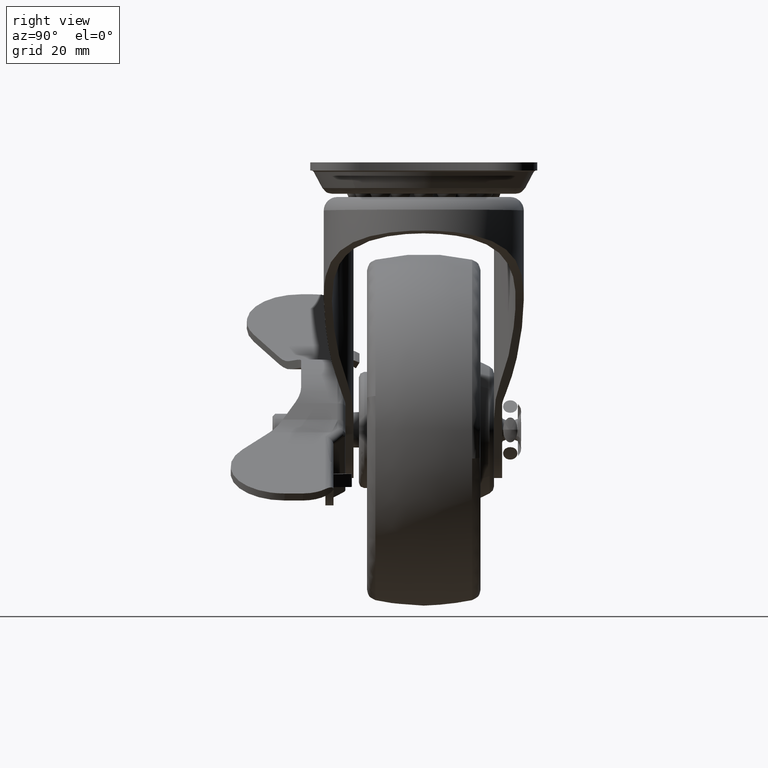
[diagram: clean part render]
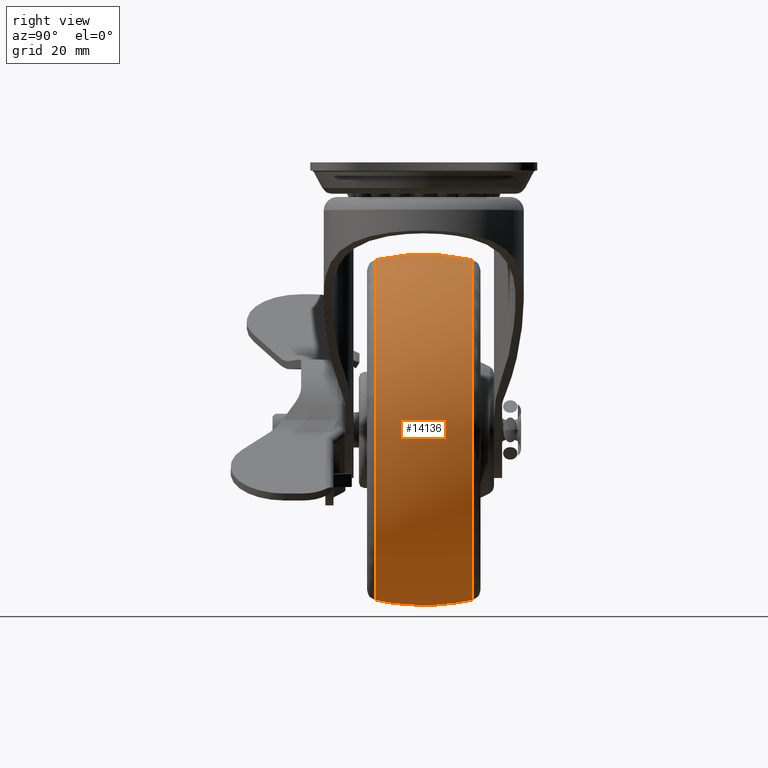
[diagram: same view with one face highlighted and labeled with its STEP entity id]
A machine part, right view. The second image highlights one B-rep face of the part: STEP entity #14136.
In plain terms, the highlighted face is a freeform B-spline surface patch.
Its self-contained STEP definition (entity closure, byte-faithful):
#12885=CARTESIAN_POINT('',(-24.0,8.947336257173930,-16.513521757001790));
#12886=VERTEX_POINT('',#12885);
#12902=CARTESIAN_POINT('',(7.038053842290333,8.947354693358054,-53.294983683540977));
#12903=VERTEX_POINT('',#12902);
#12904=CARTESIAN_POINT('',(7.038053842290333,8.947354693358054,-53.294983683540977));
#12905=CARTESIAN_POINT('',(7.350090336757843,8.947353768360655,-51.466914289849043));
#12906=CARTESIAN_POINT('',(7.643953845996498,8.947351928043842,-47.826865162570989));
#12907=CARTESIAN_POINT('',(7.200134397448603,8.947349517523794,-43.051285896039637));
#12908=CARTESIAN_POINT('',(6.230993879905615,8.947347449964335,-38.949693324031841));
#12909=CARTESIAN_POINT('',(4.770957662269700,8.947345420158623,-34.918271748401672));
#12910=CARTESIAN_POINT('',(2.654025049601716,8.947343458668968,-31.015974706319820));
#12911=CARTESIAN_POINT('',(-0.144289324352766,8.947341598829564,-27.308558366741501));
#12912=CARTESIAN_POINT('',(-2.907652726364344,8.947340197977756,-24.510000058953249));
#12913=CARTESIAN_POINT('',(-6.165354744679130,8.947338920055236,-21.950179703327080));
#12914=CARTESIAN_POINT('',(-9.967369192989938,8.947337785755286,-19.669594462062410));
#12915=CARTESIAN_POINT('',(-14.480671714024970,8.947336885679633,-17.846032142473859));
#12916=CARTESIAN_POINT('',(-19.292451305698371,8.947336353856056,-16.748626830148460));
#12917=CARTESIAN_POINT('',(-22.430811279385019,8.947336249765234,-16.513433348494310));
#12918=CARTESIAN_POINT('',(-24.0,8.947336257173930,-16.513521757001790));
#12919=B_SPLINE_CURVE_WITH_KNOTS('',3,(#12904,#12905,#12906,#12907,#12908,#12909,#12910,#12911,#12912,#12913,#12914,#12915,#12916,#12917,#12918),.UNSPECIFIED.,.F.,.U.,(4,1,1,1,1,1,1,1,1,1,1,1,4),(0.000000063023919,5.563507503283589,10.913045226823900,14.336747456656919,18.188429290741471,23.751953183342469,27.603554242508270,32.097167895062647,35.520879041928453,40.014499029920728,45.364032831625437,50.071643195338467,54.779207371505123),.UNSPECIFIED.);
#12920=EDGE_CURVE('',#12903,#12886,#12919,.T.);
#12983=CARTESIAN_POINT('',(-24.0,8.947368421051781,-79.486462861437403));
#12984=VERTEX_POINT('',#12983);
#12985=CARTESIAN_POINT('',(-24.0,8.947368421051781,-79.486462861437403));
#12986=CARTESIAN_POINT('',(-22.678148629432311,8.947368412350166,-79.486481910070481));
#12987=CARTESIAN_POINT('',(-19.402214582926518,8.947368284156914,-79.280012999772978));
#12988=CARTESIAN_POINT('',(-14.951176217583960,8.947367743296162,-78.289293135275258));
#12989=CARTESIAN_POINT('',(-11.036189927214620,8.947366927827940,-76.759874161122880));
#12990=CARTESIAN_POINT('',(-8.023909675321233,8.947366099982851,-75.194961706044310));
#12991=CARTESIAN_POINT('',(-4.895327107070064,8.947365020070949,-73.143333206525625));
#12992=CARTESIAN_POINT('',(-1.883978874086483,8.947363658778082,-70.545232933797507));
#12993=CARTESIAN_POINT('',(0.558493251103808,8.947362218506598,-67.786906076537520));
#12994=CARTESIAN_POINT('',(2.783565187466294,8.947360615660699,-64.710932547936110));
#12995=CARTESIAN_POINT('',(4.507026546390701,8.947358986953995,-61.578468820569100));
#12996=CARTESIAN_POINT('',(6.105749621963841,8.947356875057560,-57.508575849853649));
#12997=CARTESIAN_POINT('',(6.757882907756575,8.947355543505026,-54.937963927080681));
#12998=CARTESIAN_POINT('',(7.038053842290333,8.947354693358054,-53.294983683540977));
#12999=B_SPLINE_CURVE_WITH_KNOTS('',3,(#12985,#12986,#12987,#12988,#12989,#12990,#12991,#12992,#12993,#12994,#12995,#12996,#12997,#12998),.UNSPECIFIED.,.F.,.U.,(4,1,1,1,1,1,1,1,1,1,1,4),(0.000000054904028,3.965569494202207,9.827736435170536,13.620903514959171,16.551984789235750,20.000321804953401,24.827933788479921,28.448706059261749,31.034956810894830,36.207460560286677,39.138540517001097,44.138614304316377),.UNSPECIFIED.);
#13000=EDGE_CURVE('',#12984,#12903,#12999,.T.);
#13002=CARTESIAN_POINT('',(-55.275880306832093,8.947359974596118,-44.364472857753377));
#13003=VERTEX_POINT('',#13002);
#13004=CARTESIAN_POINT('',(-55.275880306832093,8.947359974596118,-44.364472857753377));
#13005=CARTESIAN_POINT('',(-55.547821594770419,8.947360255325600,-46.699625475546533));
#13006=CARTESIAN_POINT('',(-55.560013248741228,8.947360720479141,-50.178457113873712));
#13007=CARTESIAN_POINT('',(-54.871795696837680,8.947361371031791,-54.415827660036193));
#13008=CARTESIAN_POINT('',(-54.091745359712363,8.947361868548033,-57.430454397843143));
#13009=CARTESIAN_POINT('',(-52.837680219624303,8.947362481010702,-60.879961492696879));
#13010=CARTESIAN_POINT('',(-50.934209604537351,8.947363194257591,-64.502579464297625));
#13011=CARTESIAN_POINT('',(-48.552568460985228,8.947363924153788,-67.823520136599001));
#13012=CARTESIAN_POINT('',(-46.084699858895412,8.947364583321095,-70.540352492349328));
#13013=CARTESIAN_POINT('',(-43.424470511335080,8.947365212799516,-72.864541432424801));
#13014=CARTESIAN_POINT('',(-40.123903728049271,8.947365913876961,-75.152327520097472));
#13015=CARTESIAN_POINT('',(-36.545151089147218,8.947366587775868,-76.989756710488393));
#13016=CARTESIAN_POINT('',(-32.425381950503670,8.947367272811215,-78.428445430118174));
#13017=CARTESIAN_POINT('',(-28.356043142575910,8.947367873776360,-79.285247274833679));
#13018=CARTESIAN_POINT('',(-25.452020259805622,8.947368247629470,-79.486520354623366));
#13019=CARTESIAN_POINT('',(-24.0,8.947368421051781,-79.486462861437403));
#13020=B_SPLINE_CURVE_WITH_KNOTS('',3,(#13004,#13005,#13006,#13007,#13008,#13009,#13010,#13011,#13012,#13013,#13014,#13015,#13016,#13017,#13018,#13019),.UNSPECIFIED.,.F.,.U.,(4,1,1,1,1,1,1,1,1,1,1,1,1,4),(0.000000062004275,7.052658285308425,10.371596052613160,12.860778893211149,16.387136963650011,21.365503504150169,25.099311634838450,28.625605716799480,32.359363234047777,35.678273925599711,40.656662066344467,44.390453174510597,48.746510877432158,53.102573520156177),.UNSPECIFIED.);
#13021=EDGE_CURVE('',#13003,#12984,#13020,.T.);
#13070=CARTESIAN_POINT('',(-14.191573362002011,-8.947368095127844,-77.919761409910095));
#13071=VERTEX_POINT('',#13070);
#13072=CARTESIAN_POINT('',(6.852174713301443,-8.947360323541604,-41.711834097038121));
#13073=VERTEX_POINT('',#13072);
#13074=CARTESIAN_POINT('',(-14.191573362002011,-8.947368095127844,-77.919761409910095));
#13075=CARTESIAN_POINT('',(-11.980595829939730,-8.947367925976502,-77.195444393366216));
#13076=CARTESIAN_POINT('',(-8.976992091229809,-8.947367615117829,-75.825784964998192));
#13077=CARTESIAN_POINT('',(-5.041080099159434,-8.947367038322424,-73.224841107047169));
#13078=CARTESIAN_POINT('',(-2.245728491778010,-8.947366524460257,-70.881816398065595));
#13079=CARTESIAN_POINT('',(0.469776553940039,-8.947365885203176,-67.939319639837450));
#13080=CARTESIAN_POINT('',(2.562559545496752,-8.947365257044268,-65.026973720342014));
#13081=CARTESIAN_POINT('',(4.436144596944491,-8.947364542413524,-61.695261724988853));
#13082=CARTESIAN_POINT('',(5.901604023561802,-8.947363787982281,-58.159355551440157));
#13083=CARTESIAN_POINT('',(7.112624415606220,-8.947362819381720,-53.595281607299512));
#13084=CARTESIAN_POINT('',(7.695023120151242,-8.947361663029517,-48.115112970778412));
#13085=CARTESIAN_POINT('',(7.305250927123625,-8.947360786957523,-43.933018397606062));
#13086=CARTESIAN_POINT('',(6.852174713301443,-8.947360323541604,-41.711834097038121));
#13087=B_SPLINE_CURVE_WITH_KNOTS('',3,(#13074,#13075,#13076,#13077,#13078,#13079,#13080,#13081,#13082,#13083,#13084,#13085,#13086),.UNSPECIFIED.,.F.,.U.,(4,1,1,1,1,1,1,1,1,1,4),(0.000000055752359,6.979644766757836,9.843107743871784,14.138289170895479,17.896567191299269,21.833825872057901,24.876181014893529,29.350342797420780,33.287605455774852,39.014519061373903,45.815200377075392),.UNSPECIFIED.);
#13088=EDGE_CURVE('',#13071,#13073,#13087,.T.);
#13168=CARTESIAN_POINT('',(-24.0,-8.947368421051811,-79.486462861437403));
#13169=VERTEX_POINT('',#13168);
#13170=CARTESIAN_POINT('',(-24.0,-8.947368421051811,-79.486462861437403));
#13171=CARTESIAN_POINT('',(-22.597347654289379,-8.947368421059544,-79.486500061545627));
#13172=CARTESIAN_POINT('',(-19.272545538824371,-8.947368374764423,-79.263961523735205));
#13173=CARTESIAN_POINT('',(-16.018034967667340,-8.947368219734235,-78.518738550777528));
#13174=CARTESIAN_POINT('',(-14.191573362002011,-8.947368095127844,-77.919761409910095));
#13175=B_SPLINE_CURVE_WITH_KNOTS('',3,(#13170,#13171,#13172,#13173,#13174),.UNSPECIFIED.,.F.,.U.,(4,1,4),(2.694014E-009,4.207962567013001,9.974427663913261),.UNSPECIFIED.);
#13176=EDGE_CURVE('',#13169,#13071,#13175,.T.);
#13242=CARTESIAN_POINT('',(-24.0,-8.947354645992999,-16.513525977205941));
#13243=VERTEX_POINT('',#13242);
#13244=CARTESIAN_POINT('',(6.852174713301443,-8.947360323541604,-41.711834097038121));
#13245=CARTESIAN_POINT('',(6.616674356553986,-8.947360063186283,-40.556315317975717));
#13246=CARTESIAN_POINT('',(5.929853179129161,-8.947359474901806,-37.945369433325652));
#13247=CARTESIAN_POINT('',(4.489652205011048,-8.947358675623919,-34.397984065198933));
#13248=CARTESIAN_POINT('',(2.535554894108912,-8.947357891083261,-30.916006774067579));
#13249=CARTESIAN_POINT('',(-0.080119960030152,-8.947357081164174,-27.321394127463972));
#13250=CARTESIAN_POINT('',(-3.195783585420354,-8.947356381339059,-24.215402045432619));
#13251=CARTESIAN_POINT('',(-6.805626178187480,-8.947355776581373,-21.531346166256590));
#13252=CARTESIAN_POINT('',(-10.373765359109671,-8.947355317308249,-19.492982032799411));
#13253=CARTESIAN_POINT('',(-14.252155616385579,-8.947354973813972,-17.968473308258510));
#13254=CARTESIAN_POINT('',(-18.833708518464210,-8.947354714485568,-16.817511337658718));
#13255=CARTESIAN_POINT('',(-21.978347971737819,-8.947354645935379,-16.513271893004180));
#13256=CARTESIAN_POINT('',(-24.0,-8.947354645992999,-16.513525977205941));
#13257=B_SPLINE_CURVE_WITH_KNOTS('',3,(#13244,#13245,#13246,#13247,#13248,#13249,#13250,#13251,#13252,#13253,#13254,#13255,#13256),.UNSPECIFIED.,.F.,.U.,(4,1,1,1,1,1,1,1,1,1,4),(0.000000052446886,3.537828425477862,8.086516996105267,11.455915967217621,15.499182803335691,21.395648451070059,24.596489220533840,28.976723801619951,33.693874365227302,37.063261435819747,43.128151239804183),.UNSPECIFIED.);
#13258=EDGE_CURVE('',#13073,#13243,#13257,.T.);
#13260=CARTESIAN_POINT('',(-55.275879273257722,-8.947364501282479,-44.364472963487678));
#13261=VERTEX_POINT('',#13260);
#13279=CARTESIAN_POINT('',(-55.275879273257722,-8.947364501282479,-44.364472963487678));
#13280=CARTESIAN_POINT('',(-55.451579249134461,-8.947364585594800,-45.875449321716772));
#13281=CARTESIAN_POINT('',(-55.589413955473937,-8.947364776268397,-49.061451438131407));
#13282=CARTESIAN_POINT('',(-55.117261149657608,-8.947365072838755,-53.405544566373173));
#13283=CARTESIAN_POINT('',(-54.016026259594440,-8.947365410002686,-57.841599793926648));
#13284=CARTESIAN_POINT('',(-52.491424461756992,-8.947365730967059,-61.640395785895052));
#13285=CARTESIAN_POINT('',(-50.357835400850398,-8.947366081159817,-65.366461035535920));
#13286=CARTESIAN_POINT('',(-48.200496207248449,-8.947366380382524,-68.252520865027378));
#13287=CARTESIAN_POINT('',(-45.347481026183551,-8.947366726432472,-71.271383167539341));
#13288=CARTESIAN_POINT('',(-42.223291419751867,-8.947367057457823,-73.807400577774203));
#13289=CARTESIAN_POINT('',(-38.896688631623562,-8.947367366021306,-75.802284344737998));
#13290=CARTESIAN_POINT('',(-35.637783351390709,-8.947367641687700,-77.328982776557993));
#13291=CARTESIAN_POINT('',(-32.026670373967377,-8.947367917866917,-78.550250050880976));
#13292=CARTESIAN_POINT('',(-27.941179840597371,-8.947368192633208,-79.326403452611927));
#13293=CARTESIAN_POINT('',(-25.244575170079990,-8.947368352067651,-79.486485125302238));
#13294=CARTESIAN_POINT('',(-24.0,-8.947368421051811,-79.486462861437403));
#13295=B_SPLINE_CURVE_WITH_KNOTS('',3,(#13279,#13280,#13281,#13282,#13283,#13284,#13285,#13286,#13287,#13288,#13289,#13290,#13291,#13292,#13293,#13294),.UNSPECIFIED.,.F.,.U.,(4,1,1,1,1,1,1,1,1,1,1,1,1,4),(0.000000062004503,4.563477460401472,9.541862017825160,13.068211911195480,18.254031924220079,21.780385927768570,25.929043810064769,29.040424272260989,34.226254486718453,37.960038994862323,40.656661553418623,45.012743651364843,49.368839118576197,53.102572850210649),.UNSPECIFIED.);
#13296=EDGE_CURVE('',#13261,#13169,#13295,.T.);
#14055=CARTESIAN_POINT('',(-55.058100660806424,-9.854040007855017,-44.389750488005582));
#14056=CARTESIAN_POINT('',(-56.282628353075125,-5.004131983858700,-44.247409343142706));
#14057=CARTESIAN_POINT('',(-56.282628353075133,7.439483E-015,-44.247409343142714));
#14058=CARTESIAN_POINT('',(-56.282628353075125,5.004131983858714,-44.247409343142706));
#14059=CARTESIAN_POINT('',(-55.058100660806424,9.854040007855032,-44.389750488005582));
#14060=CARTESIAN_POINT('',(-55.267227080661627,-9.854040007855019,-46.188816334668481));
#14061=CARTESIAN_POINT('',(-56.499999999999893,-5.004131983858700,-46.117406956480998));
#14062=CARTESIAN_POINT('',(-56.499999999999886,7.439483E-015,-46.117406956481005));
#14063=CARTESIAN_POINT('',(-56.499999999999893,5.004131983858714,-46.117406956480998));
#14064=CARTESIAN_POINT('',(-55.267227080661627,9.854040007855032,-46.188816334668481));
#14065=CARTESIAN_POINT('',(-55.267227080661627,-9.854040007855021,-47.999996000000003));
#14066=CARTESIAN_POINT('',(-56.499999999999893,-5.004131983858700,-47.999996000000003));
#14067=CARTESIAN_POINT('',(-56.499999999999893,7.439483E-015,-47.999996000000003));
#14068=CARTESIAN_POINT('',(-56.499999999999893,5.004131983858714,-47.999996000000003));
#14069=CARTESIAN_POINT('',(-55.267227080661627,9.854040007855033,-47.999996000000003));
#14070=CARTESIAN_POINT('',(-55.267227080661641,-9.854040007855019,-79.267223080661637));
#14071=CARTESIAN_POINT('',(-56.499999999999908,-5.004131983858700,-80.499995999999896));
#14072=CARTESIAN_POINT('',(-56.499999999999901,7.439483E-015,-80.499995999999896));
#14073=CARTESIAN_POINT('',(-56.499999999999908,5.004131983858714,-80.499995999999896));
#14074=CARTESIAN_POINT('',(-55.267227080661641,9.854040007855033,-79.267223080661637));
#14075=CARTESIAN_POINT('',(-23.999999999999996,-9.854040007855021,-79.267223080661651));
#14076=CARTESIAN_POINT('',(-23.999999999999996,-5.004131983858700,-80.499995999999896));
#14077=CARTESIAN_POINT('',(-24.0,7.439483E-015,-80.499995999999896));
#14078=CARTESIAN_POINT('',(-23.999999999999996,5.004131983858714,-80.499995999999896));
#14079=CARTESIAN_POINT('',(-23.999999999999996,9.854040007855033,-79.267223080661651));
#14080=CARTESIAN_POINT('',(7.267227080661626,-9.854040007855019,-79.267223080661637));
#14081=CARTESIAN_POINT('',(8.499999999999892,-5.004131983858700,-80.499995999999896));
#14082=CARTESIAN_POINT('',(8.499999999999892,7.439483E-015,-80.499995999999896));
#14083=CARTESIAN_POINT('',(8.499999999999892,5.004131983858714,-80.499995999999896));
#14084=CARTESIAN_POINT('',(7.267227080661626,9.854040007855033,-79.267223080661637));
#14085=CARTESIAN_POINT('',(7.267227080661623,-9.854040007855021,-47.999996000000003));
#14086=CARTESIAN_POINT('',(8.499999999999890,-5.004131983858700,-47.999996000000003));
#14087=CARTESIAN_POINT('',(8.499999999999890,7.439483E-015,-47.999996000000003));
#14088=CARTESIAN_POINT('',(8.499999999999890,5.004131983858714,-47.999996000000003));
#14089=CARTESIAN_POINT('',(7.267227080661624,9.854040007855033,-47.999996000000003));
#14090=CARTESIAN_POINT('',(7.267227080661626,-9.854040007855019,-16.732768919338373));
#14091=CARTESIAN_POINT('',(8.499999999999892,-5.004131983858700,-15.499996000000120));
#14092=CARTESIAN_POINT('',(8.499999999999892,7.439483E-015,-15.499996000000110));
#14093=CARTESIAN_POINT('',(8.499999999999892,5.004131983858714,-15.499996000000120));
#14094=CARTESIAN_POINT('',(7.267227080661626,9.854040007855033,-16.732768919338373));
#14095=CARTESIAN_POINT('',(-23.999999999999996,-9.854040007855021,-16.732768919338387));
#14096=CARTESIAN_POINT('',(-23.999999999999996,-5.004131983858700,-15.499996000000111));
#14097=CARTESIAN_POINT('',(-24.0,7.439483E-015,-15.499996000000110));
#14098=CARTESIAN_POINT('',(-23.999999999999996,5.004131983858714,-15.499996000000111));
#14099=CARTESIAN_POINT('',(-23.999999999999996,9.854040007855033,-16.732768919338376));
#14107=(BOUNDED_SURFACE()B_SPLINE_SURFACE(2,2,((#14055,#14060,#14065,#14070,#14075,#14080,#14085,#14090,#14095),(#14056,#14061,#14066,#14071,#14076,#14081,#14086,#14091,#14096),(#14057,#14062,#14067,#14072,#14077,#14082,#14087,#14092,#14097),(#14058,#14063,#14068,#14073,#14078,#14083,#14088,#14093,#14098),(#14059,#14064,#14069,#14074,#14079,#14084,#14089,#14094,#14099)),.UNSPECIFIED.,.F.,.F.,.U.)B_SPLINE_SURFACE_WITH_KNOTS((3,2,3),(3,2,2,2,3),(0.0,10.297823504314330,20.595647008628649),(0.0,4.307820149998673,58.155583258500847,112.003346367003000,165.851109475505210),.UNSPECIFIED.)GEOMETRIC_REPRESENTATION_ITEM()RATIONAL_B_SPLINE_SURFACE(((0.889902531509334,0.908207150808651,0.929998363394313,0.657608149248510,0.929998363394313,0.657608149248510,0.929998363394313,0.657608149248510,0.929998363394313),(0.915649230984031,0.934483440340024,0.956905117253819,0.676634097362284,0.956905117253819,0.676634097362284,0.956905117253819,0.676634097362284,0.956905117253819),(0.956886126402807,0.976568547383107,1.0,0.707106781186548,1.0,0.707106781186548,1.0,0.707106781186548,1.0),(0.915649230984031,0.934483440340024,0.956905117253819,0.676634097362284,0.956905117253819,0.676634097362284,0.956905117253819,0.676634097362284,0.956905117253819),(0.889902531509334,0.908207150808651,0.929998363394313,0.657608149248510,0.929998363394313,0.657608149248510,0.929998363394313,0.657608149248510,0.929998363394313)))REPRESENTATION_ITEM('')SURFACE());
#14108=ORIENTED_EDGE('',*,*,#13021,.T.);
#14109=ORIENTED_EDGE('',*,*,#13000,.T.);
#14110=ORIENTED_EDGE('',*,*,#12920,.T.);
#14111=CARTESIAN_POINT('',(-24.0,-8.947354645992999,-16.513525977205941));
#14112=CARTESIAN_POINT('',(-24.000000000000028,-7.389906463948309,-16.156049882608450));
#14113=CARTESIAN_POINT('',(-23.999999999999950,-4.324979674592850,-15.643649815468510));
#14114=CARTESIAN_POINT('',(-24.000000000000028,0.094512108289944,-15.425370337627660));
#14115=CARTESIAN_POINT('',(-23.999999999999989,4.510710030913045,-15.674713727476430));
#14116=CARTESIAN_POINT('',(-24.0,7.389888550430673,-16.156044522944409));
#14117=CARTESIAN_POINT('',(-24.0,8.947336257173930,-16.513521757001790));
#14118=B_SPLINE_CURVE_WITH_KNOTS('',3,(#14111,#14112,#14113,#14114,#14115,#14116,#14117),.UNSPECIFIED.,.F.,.U.,(4,1,1,1,4),(2.741185E-009,4.793845221398575,9.305695750930848,13.253571456217241,18.047416674874729),.UNSPECIFIED.);
#14119=EDGE_CURVE('',#13243,#12886,#14118,.T.);
#14120=ORIENTED_EDGE('',*,*,#14119,.F.);
#14121=ORIENTED_EDGE('',*,*,#13258,.F.);
#14122=ORIENTED_EDGE('',*,*,#13088,.F.);
#14123=ORIENTED_EDGE('',*,*,#13176,.F.);
#14124=ORIENTED_EDGE('',*,*,#13296,.F.);
#14125=CARTESIAN_POINT('',(-55.275879273257722,-8.947364501282479,-44.364472963487678));
#14126=CARTESIAN_POINT('',(-55.547384991501467,-7.756369090000019,-44.332912679345142));
#14127=CARTESIAN_POINT('',(-56.098918697586612,-4.701257393558194,-44.268801468531763));
#14128=CARTESIAN_POINT('',(-56.478926631087063,1.317378441292997,-44.224628706780138));
#14129=CARTESIAN_POINT('',(-55.923838046967042,6.107361205142270,-44.289153148961290));
#14130=CARTESIAN_POINT('',(-55.275880306832093,8.947359974596118,-44.364472857753377));
#14131=B_SPLINE_CURVE_WITH_KNOTS('',3,(#14125,#14126,#14127,#14128,#14129,#14130),.UNSPECIFIED.,.F.,.U.,(4,1,1,4),(2.739593E-009,3.665886795761324,9.305713511980494,18.047451120585880),.UNSPECIFIED.);
#14132=EDGE_CURVE('',#13261,#13003,#14131,.T.);
#14133=ORIENTED_EDGE('',*,*,#14132,.T.);
#14134=EDGE_LOOP('',(#14108,#14109,#14110,#14120,#14121,#14122,#14123,#14124,#14133));
#14135=FACE_OUTER_BOUND('',#14134,.T.);
#14136=ADVANCED_FACE('',(#14135),#14107,.T.);